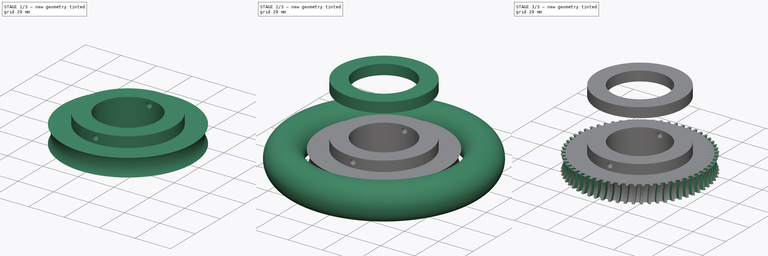
[diagram: build sequence overview — one tinted view per stage of 3, left to right]
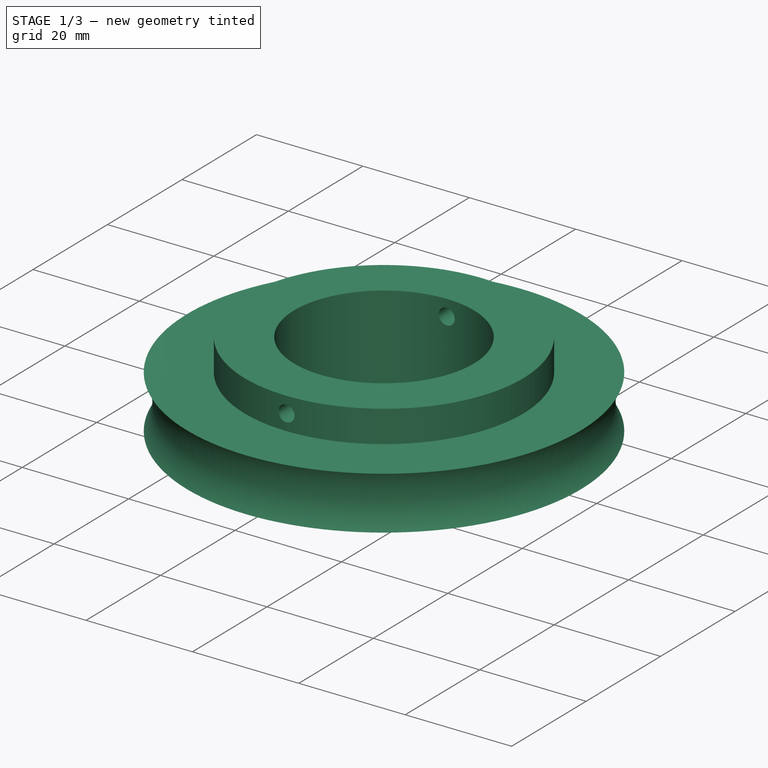
[diagram: stage 1 of 3 — iso view after this stage's code; geometry added in this stage tinted green]
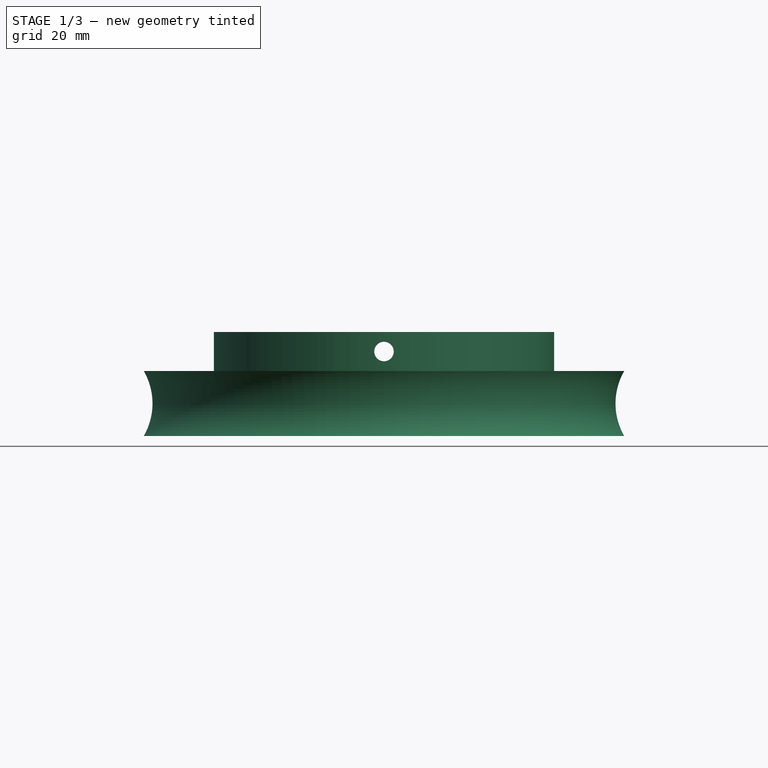
[diagram: stage 1 of 3 — front view after this stage's code; geometry added in this stage tinted green]
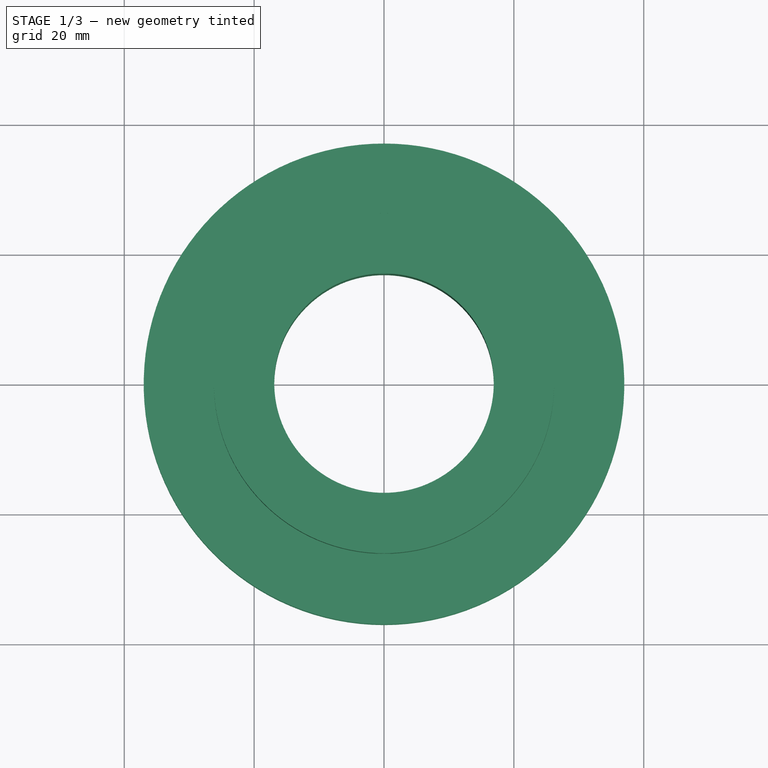
[diagram: stage 1 of 3 — top view after this stage's code; geometry added in this stage tinted green]
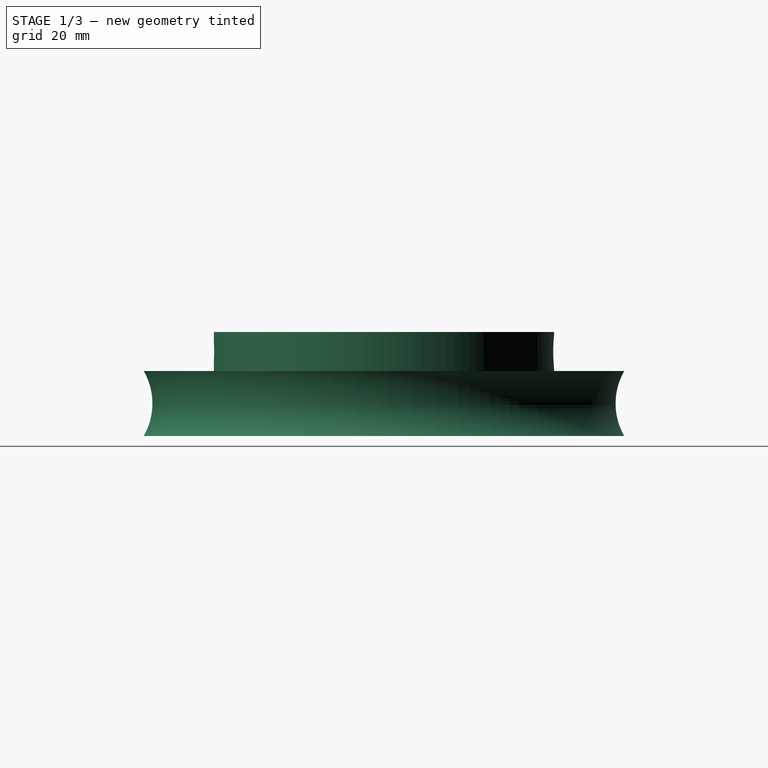
[diagram: stage 1 of 3 — right view after this stage's code; geometry added in this stage tinted green]
FCSTD DOCUMENT  (FreeCAD 0.14R3700 (Git))
Label: axis_gear
License: CC-BY 3.0
LicenseURL: http://creativecommons.org/licenses/by/3.0/
objects: Sketcher::SketchObject×4, PartDesign::Revolution×3, Part::Cut×2, PartDesign::Pad×1, Part::FeaturePython×1, Part::Torus×1
note: 16 computed .brp shape members not serialized (recipe doc carries the construction recipe); baked Part::Feature solids carry a one-line shape summary decoded from their .brp

FEATURE [Sketcher::SketchObject] Sketch003
  Placement = pos=(0,0,0) rot=(0.57735,0.57735,0.57735;2.0944rad)
  sketch-geometry (6):
    g0: LineSegment StartX=16.9 StartY=16 StartZ=0 EndX=16.9 EndY=0 EndZ=0
    g1: LineSegment StartX=16.9 StartY=0 StartZ=0 EndX=37 EndY=0 EndZ=0
    g2: ArcOfCircle CenterX=45.6603 CenterY=5 CenterZ=0 NormalX=0 NormalY=0 NormalZ=1 Radius=10 StartAngle=2.61799 EndAngle=3.66519
    g3: LineSegment StartX=37 StartY=10 StartZ=0 EndX=26.2 EndY=10 EndZ=0
    g4: LineSegment StartX=26.2 StartY=10 StartZ=0 EndX=26.2 EndY=16 EndZ=0
    g5: LineSegment StartX=26.2 StartY=16 StartZ=0 EndX=16.9 EndY=16 EndZ=0
  constraints (19):
    c: PointOnObject(g0,g-1)
    c: Vertical(g0)
    c: Coincident(g0,g1)
    c: Horizontal(g1)
    c: Coincident(g2,g1)
    c: Radius(g2) = 10
    c: Coincident(g2,g3)
    c: Coincident(g3,g4)
    c: Vertical(g4)
    c: Coincident(g4,g5)
    c: Coincident(g5,g0)
    c: Horizontal(g5)
    c: Horizontal(g3)
    c: Distance(g2,g1) = 10
    c: DistanceY(g-1,g2) = 5
    c: DistanceX(g-2,g1) = 37
    c: DistanceX(g-2,g0) = 16.9
    c: Distance(g5) = 9.3
    c: Distance(g4) = 6
FEATURE [PartDesign::Revolution] Revolution001
  Angle = 360
  Axis = (0,0,1)
  Base = (0,0,0)
  Placement = pos=(0,0,0) rot=(0.57735,0.57735,0.57735;2.0944rad)
  ReferenceAxis = -> Sketch003 [V_Axis]
  Reversed = true
  Sketch = -> Sketch003
FEATURE [Sketcher::SketchObject] Sketch007
  Placement = pos=(0,0,13) rot=(0,0,1;0rad)
  sketch-geometry (6):
    g0: LineSegment StartX=0 StartY=27 StartZ=0 EndX=2.7 EndY=27 EndZ=0
    g1: LineSegment StartX=2.7 StartY=27 StartZ=0 EndX=2.7 EndY=22.5 EndZ=0
    g2: LineSegment StartX=2.7 StartY=22.5 StartZ=0 EndX=1.5 EndY=22.5 EndZ=0
    g3: LineSegment StartX=1.5 StartY=22.5 StartZ=0 EndX=1.5 EndY=-28.468 EndZ=0
    g4: LineSegment StartX=1.5 StartY=-28.468 StartZ=0 EndX=0 EndY=-28.468 EndZ=0
    g5: LineSegment StartX=0 StartY=-28.468 StartZ=0 EndX=0 EndY=27 EndZ=0
  constraints (17):
    c: PointOnObject(g0,g-2)
    c: Horizontal(g0)
    c: Coincident(g0,g1)
    c: Vertical(g1)
    c: Coincident(g1,g2)
    c: Horizontal(g2)
    c: Coincident(g2,g3)
    c: Vertical(g3)
    c: Coincident(g3,g4)
    c: Coincident(g4,g5)
    c: Coincident(g5,g0)
    c: Vertical(g5)
    c: DistanceY(g-1,g0) = 27
    c: Distance(g1) = 4.5
    c: Horizontal(g4)
    c: Distance(g4) = 1.5
    c: Distance(g0) = 2.7
FEATURE [PartDesign::Revolution] Revolution
  Angle = 360
  Axis = (0,1,0)
  Base = (0,0,13)
  Placement = pos=(0,0,13) rot=(0,0,1;0rad)
  ReferenceAxis = -> Sketch007 [V_Axis]
  Reversed = true
  Sketch = -> Sketch007
FEATURE [Part::Cut] Cut
  Base = -> Revolution001
  Tool = -> Revolution
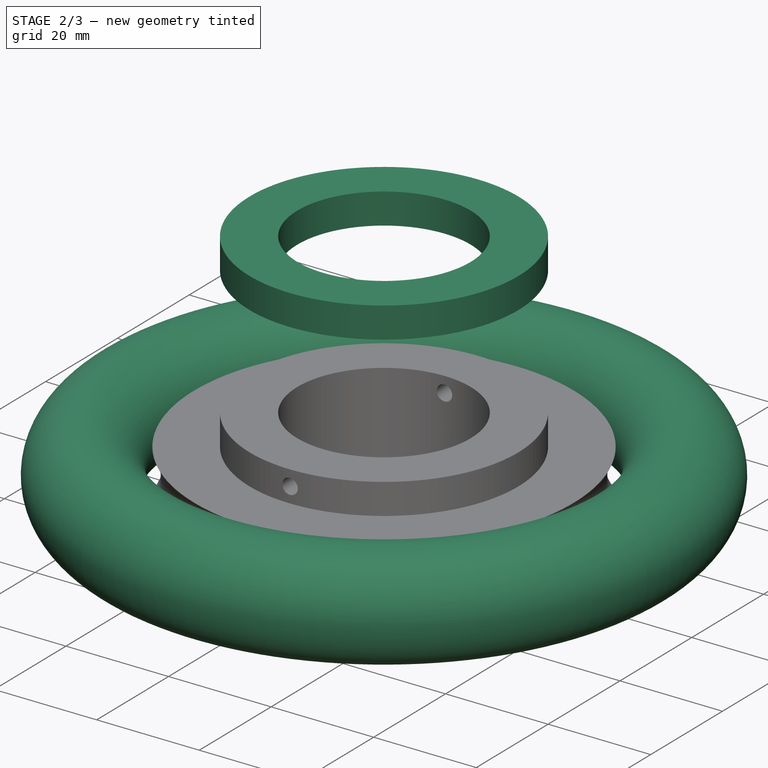
[diagram: stage 2 of 3 — iso view after this stage's code; geometry added in this stage tinted green]
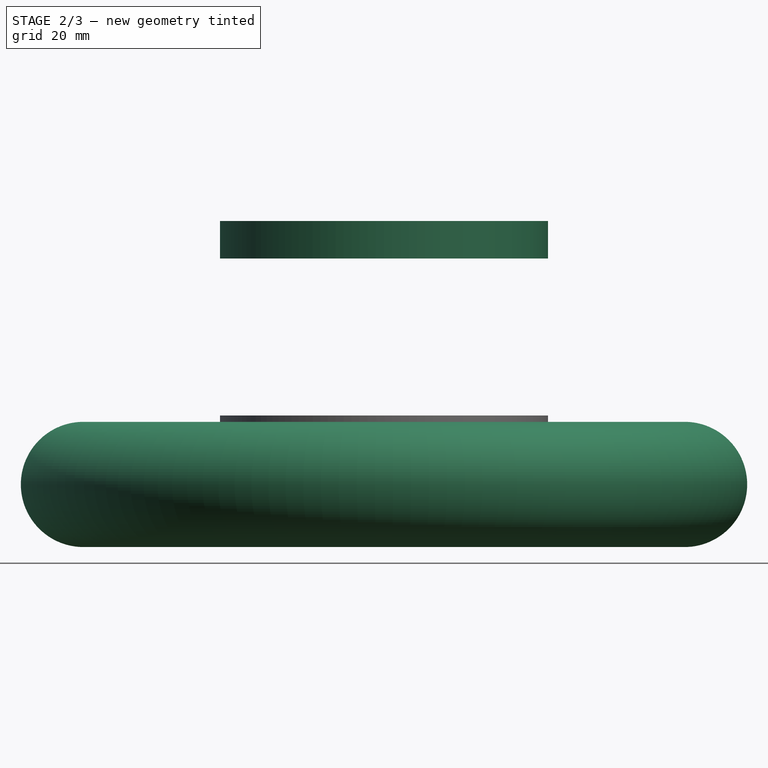
[diagram: stage 2 of 3 — front view after this stage's code; geometry added in this stage tinted green]
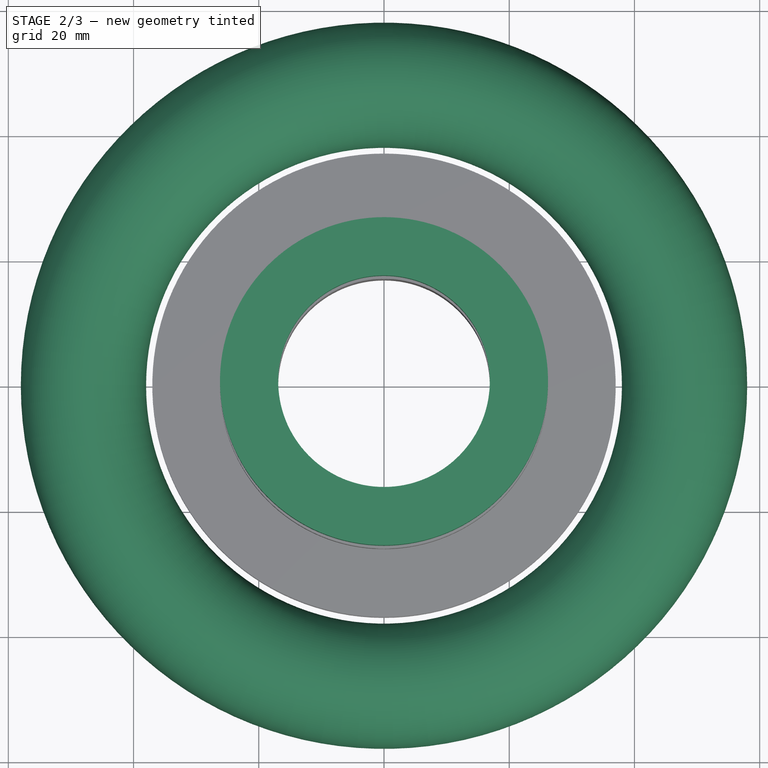
[diagram: stage 2 of 3 — top view after this stage's code; geometry added in this stage tinted green]
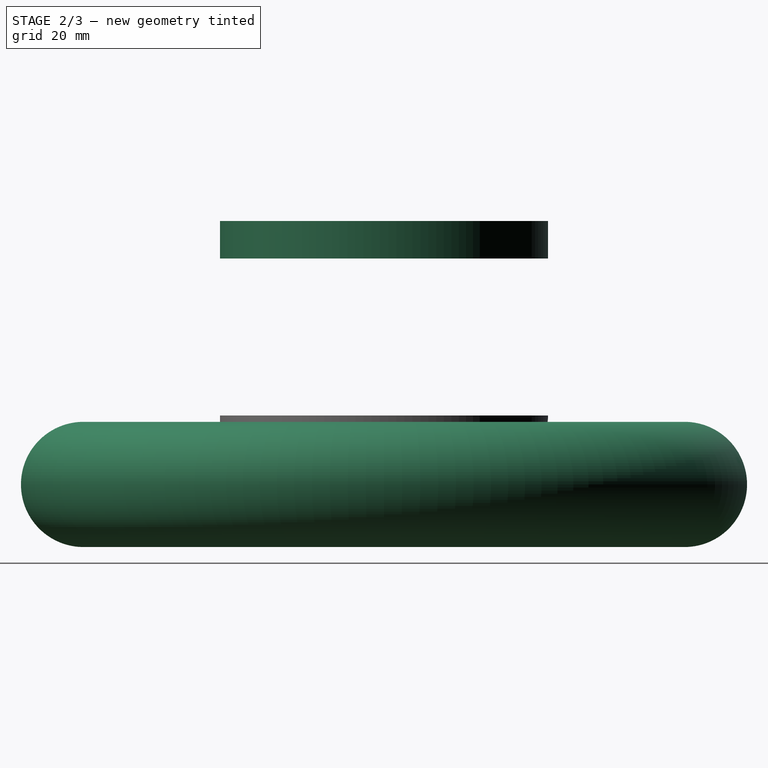
[diagram: stage 2 of 3 — right view after this stage's code; geometry added in this stage tinted green]
FEATURE [Part::Torus] Torus
  Angle1 = -180
  Angle2 = 180
  Angle3 = 360
  Placement = pos=(0,0,5) rot=(0,0,1;0rad)
  Radius1 = 48
  Radius2 = 10
FEATURE [Sketcher::SketchObject] Sketch006
  Placement = pos=(0,0,0) rot=(0.57735,0.57735,0.57735;2.0944rad)
  sketch-geometry (4):
    g0: LineSegment StartX=16.9 StartY=41.076 StartZ=0 EndX=26.2 EndY=41.076 EndZ=0
    g1: LineSegment StartX=26.2 StartY=41.076 StartZ=0 EndX=26.2 EndY=47.076 EndZ=0
    g2: LineSegment StartX=26.2 StartY=47.076 StartZ=0 EndX=16.9 EndY=47.076 EndZ=0
    g3: LineSegment StartX=16.9 StartY=47.076 StartZ=0 EndX=16.9 EndY=41.076 EndZ=0
  constraints (11):
    c: Coincident(g0,g1)
    c: Coincident(g1,g2)
    c: Coincident(g2,g3)
    c: Coincident(g3,g0)
    c: Horizontal(g0)
    c: Horizontal(g2)
    c: Vertical(g1)
    c: Vertical(g3)
    c: Distance(g1) = 6
    c: Distance(g0) = 9.3
    c: DistanceX(g-2,g0) = 16.9
FEATURE [PartDesign::Revolution] Revolution002  label="Ring"
  Angle = 360
  Axis = (0,0,1)
  Base = (0,0,0)
  Placement = pos=(0,0,0) rot=(0.57735,0.57735,0.57735;2.0944rad)
  ReferenceAxis = -> Sketch006 [V_Axis]
  Reversed = true
  Sketch = -> Sketch006
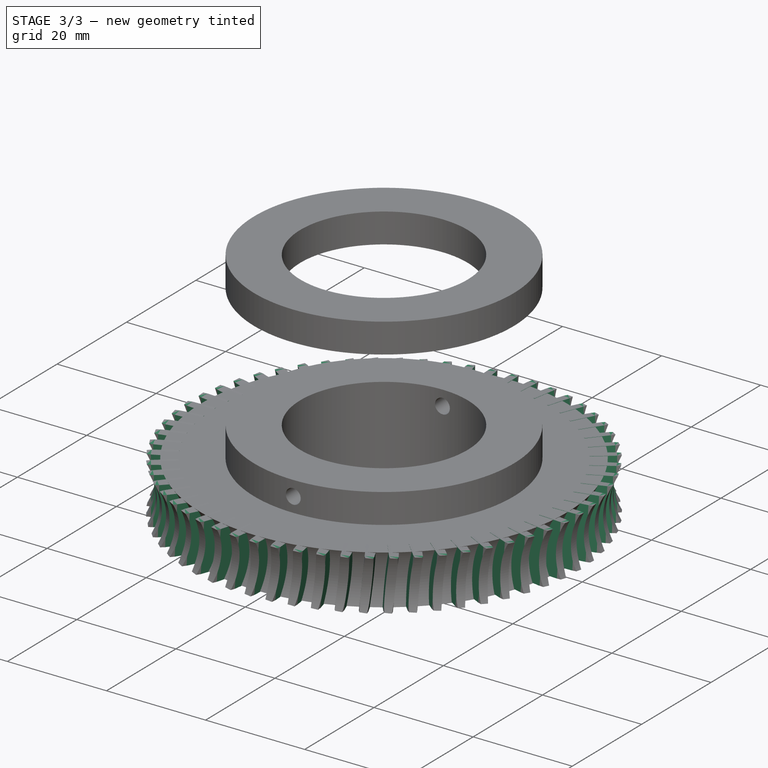
[diagram: stage 3 of 3 — iso view after this stage's code; geometry added in this stage tinted green]
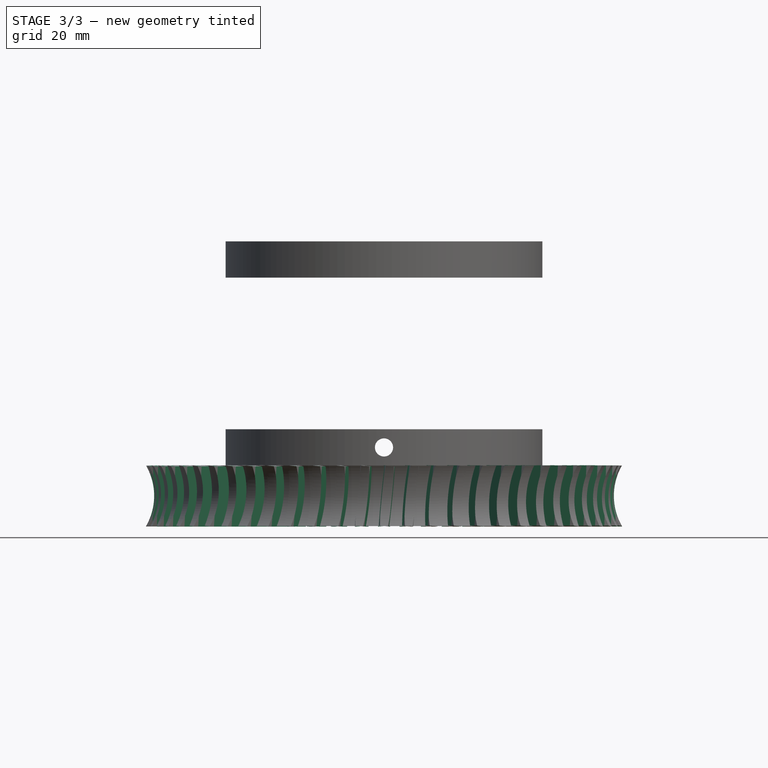
[diagram: stage 3 of 3 — front view after this stage's code; geometry added in this stage tinted green]
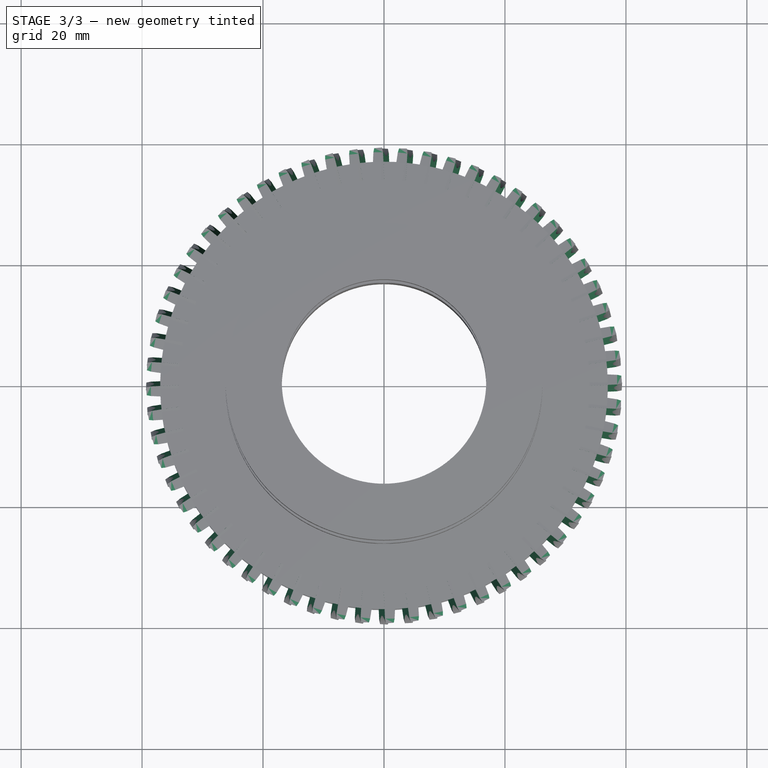
[diagram: stage 3 of 3 — top view after this stage's code; geometry added in this stage tinted green]
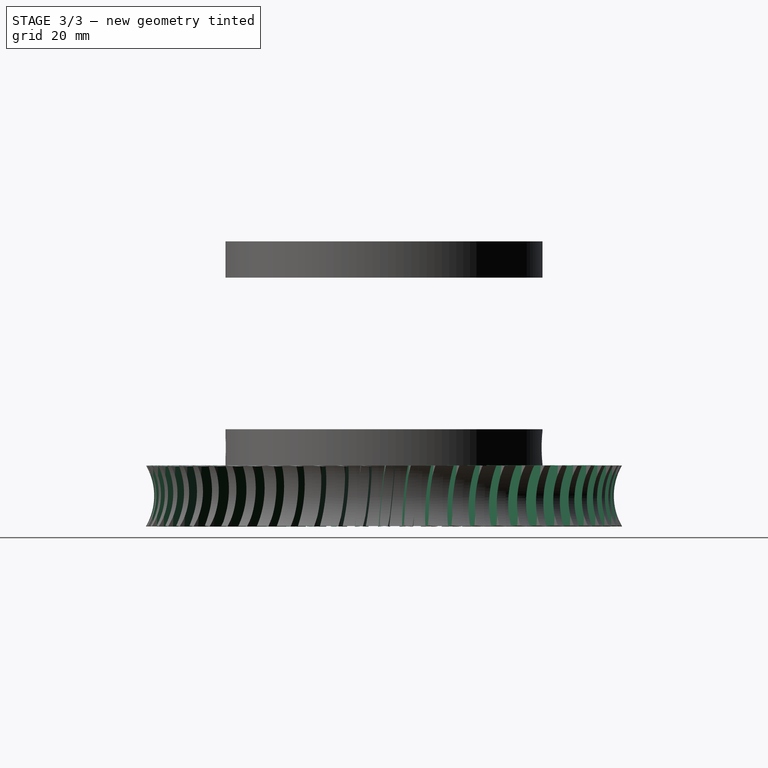
[diagram: stage 3 of 3 — right view after this stage's code; geometry added in this stage tinted green]
FEATURE [Sketcher::SketchObject] Sketch
  Placement = pos=(0,0,0) rot=(0,-1,0;0.095993rad)
  sketch-geometry (6):
    g0: LineSegment StartX=-1 StartY=34 StartZ=0 EndX=-0.8 EndY=38.5543 EndZ=0
    g1: LineSegment StartX=0.8 StartY=38.5543 StartZ=0 EndX=1 EndY=34 EndZ=0
    g2: LineSegment StartX=1 StartY=34 StartZ=0 EndX=-1 EndY=34 EndZ=0
    g3: LineSegment StartX=-0.8 StartY=38.5543 StartZ=0 EndX=-0.5 EndY=40 EndZ=0
    g4: LineSegment StartX=-0.5 StartY=40 StartZ=0 EndX=0.5 EndY=40 EndZ=0
    g5: LineSegment StartX=0.5 StartY=40 StartZ=0 EndX=0.8 EndY=38.5543 EndZ=0
  constraints (15):
    c: Coincident(g1,g2)
    c: Coincident(g2,g0)
    c: Symmetric(g1,g0,g-2)
    c: Symmetric(g1,g0,g-2)
    c: Distance(g2) = 2
    c: DistanceY(g-1,g1) = 34
    c: Coincident(g0,g3)
    c: Coincident(g3,g4)
    c: Horizontal(g4)
    c: Coincident(g4,g5)
    c: Coincident(g5,g1)
    c: Symmetric(g3,g4,g-2)
    c: DistanceY(g-1,g3) = 40
    c: Distance(g3,g4) = 1
    c: Distance(g0,g1) = 1.6
FEATURE [PartDesign::Pad] Pad  label="tooth"
  Length = 10
  Length2 = 100
  Placement = pos=(0,0,0) rot=(0,-1,0;0.095993rad)
  Sketch = -> Sketch
  Type = 0
FEATURE [Part::FeaturePython] Array  # Draft array (typed FeaturePython)
  Angle = 360
  ArrayType = 1
  Axis = (0,0,1)
  Base = -> Pad
  Center = (0,0,0)
  IntervalX = (1,0,0)
  IntervalY = (0,1,0)
  IntervalZ = (0,0,1)
  NumberPolar = 60
  NumberX = 0
  NumberY = 0
  NumberZ = 0
FEATURE [Part::Cut] Cut002
  Base = -> Array
  Tool = -> Torus
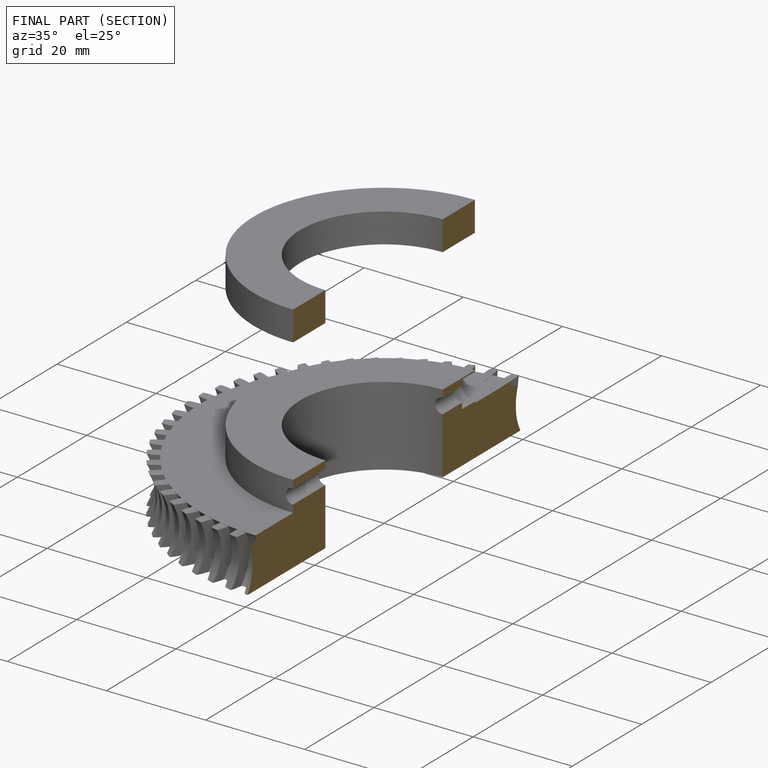
[diagram: finished part — half-section view (interior)]
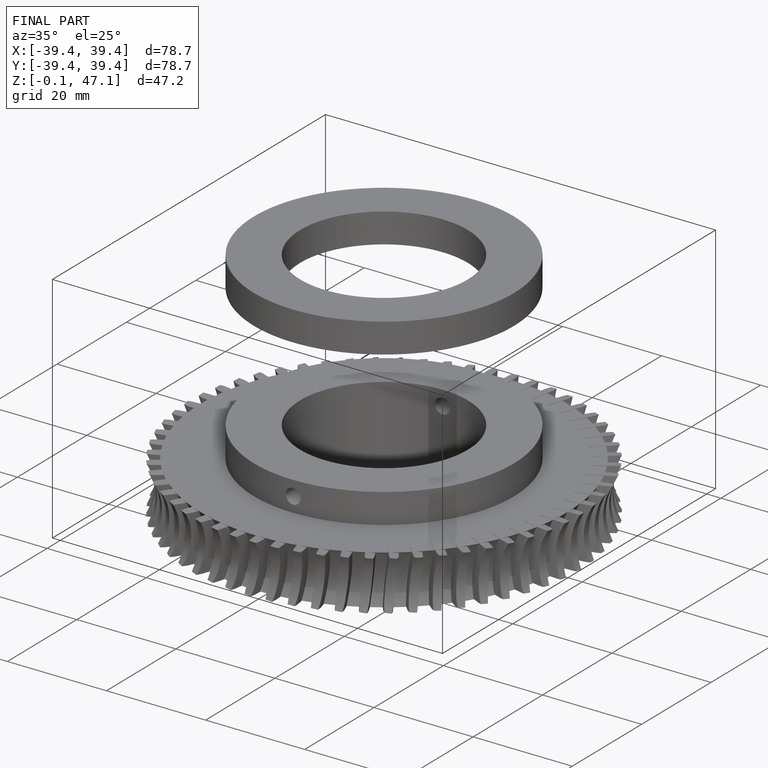
[diagram: finished part — iso view with bounding-box wireframe]
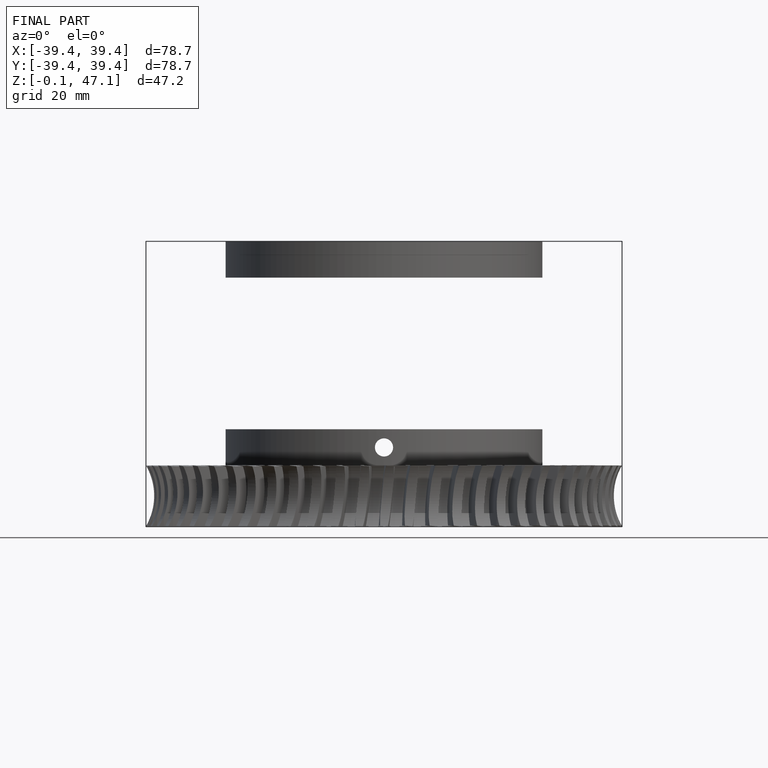
[diagram: finished part — front view with bounding-box wireframe]
